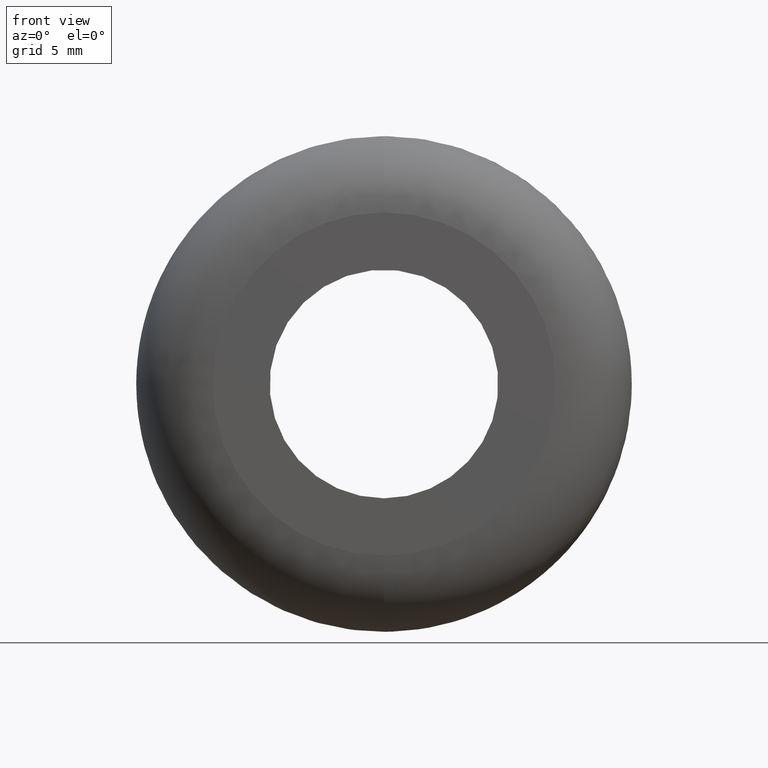
[diagram: clean part render]
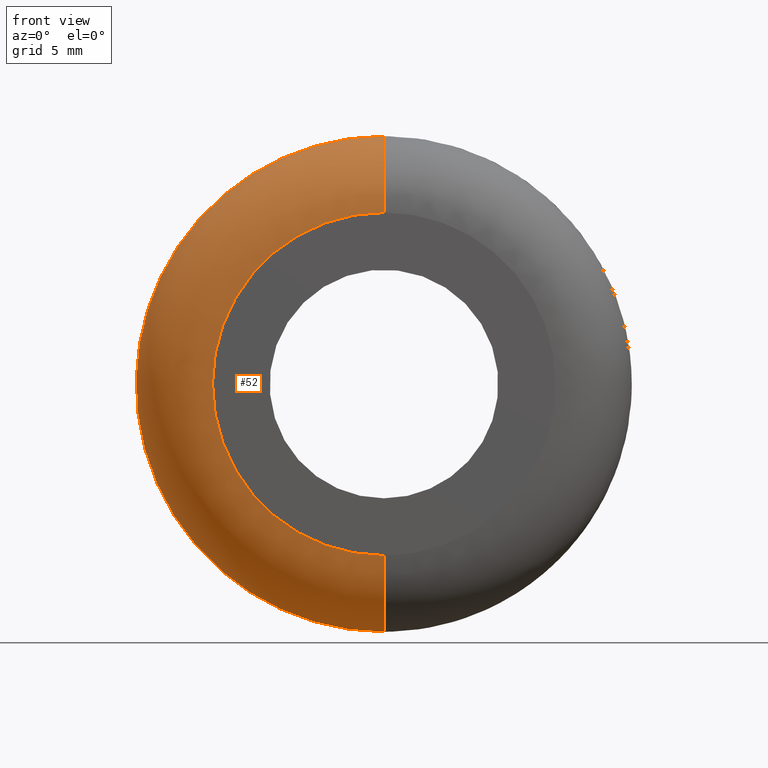
[diagram: same view with one face highlighted and labeled with its STEP entity id]
A machine part, front view. The second image highlights one B-rep face of the part: STEP entity #52.
In plain terms, the highlighted face is a freeform B-spline surface patch.
Its self-contained STEP definition (entity closure, byte-faithful):
#52=ADVANCED_FACE('',(#181),#180,.T.);
#180=( BOUNDED_SURFACE() B_SPLINE_SURFACE( 2,2,((#284,#285,#286,#287,#288),(#289,#290,#291,#292,#293),(#294,#295,#296,#297,#298),(#299,#300,#301,#302,#303),(#304,#305,#306,#307,#308)), .UNSPECIFIED.,.F.,.F.,.F.) B_SPLINE_SURFACE_WITH_KNOTS((3,2,3),(3,2,3),(-1.05693560015E-006,1.04719719888E+000,1.57079651646E+000),(0.00000000000E+000,1.57079632679E+000,3.14159265359E+000), .UNSPECIFIED. ) GEOMETRIC_REPRESENTATION_ITEM() RATIONAL_B_SPLINE_SURFACE(((1.00000000000E+000,7.07106781187E-001,1.00000000000E+000,7.07106781187E-001,1.00000000000E+000),(8.66025227628E-001,6.12372311135E-001,8.66025227628E-001,6.12372311135E-001,8.66025227628E-001),(1.00000000000E+000,7.07106781187E-001,1.00000000000E+000,7.07106781187E-001,1.00000000000E+000),(9.33012589549E-001,6.59739529003E-001,9.33012589549E-001,6.59739529003E-001,9.33012589549E-001),(9.33012613814E-001,6.59739546161E-001,9.33012613814E-001,6.59739546161E-001,9.33012613814E-001))) REPRESENTATION_ITEM('') SURFACE() );
#181=FACE_OUTER_BOUND('',#309,.T.);
#284=CARTESIAN_POINT('',(1.61239993919E-014,4.00000422774E+000,-1.30000000000E+001));
#285=CARTESIAN_POINT('',(-1.30000000000E+001,4.00000422774E+000,-1.30000000000E+001));
#286=CARTESIAN_POINT('',(-1.30000000000E+001,4.00000422774E+000,-1.14548653717E-014));
#287=CARTESIAN_POINT('',(-1.30000000000E+001,4.00000422774E+000,1.30000000000E+001));
#288=CARTESIAN_POINT('',(-1.85150641342E-014,4.00000422774E+000,1.30000000000E+001));
#289=CARTESIAN_POINT('',(1.57192578660E-014,1.69060127199E+000,-1.30000024409E+001));
#290=CARTESIAN_POINT('',(-1.30000024409E+001,1.69060127199E+000,-1.30000024409E+001));
#291=CARTESIAN_POINT('',(-1.30000024409E+001,1.69060127199E+000,-1.10939148781E-014));
#292=CARTESIAN_POINT('',(-1.30000024409E+001,1.69060127199E+000,1.30000024409E+001));
#293=CARTESIAN_POINT('',(-1.89198121640E-014,1.69060127199E+000,1.30000024409E+001));
#294=CARTESIAN_POINT('',(1.28523403794E-014,5.35899089486E-001,-1.10000012204E+001));
#295=CARTESIAN_POINT('',(-1.10000012204E+001,5.35899089486E-001,-1.10000012204E+001));
#296=CARTESIAN_POINT('',(-1.10000012204E+001,5.35899089486E-001,-8.24889292111E-015));
#297=CARTESIAN_POINT('',(-1.10000012204E+001,5.35899089486E-001,1.10000012204E+001));
#298=CARTESIAN_POINT('',(-1.64576397023E-014,5.35899089486E-001,1.10000012204E+001));
#299=CARTESIAN_POINT('',(1.15217989719E-014,-2.08055207485E-007,-1.00717971646E+001));
#300=CARTESIAN_POINT('',(-1.00717971646E+001,-2.08055205811E-007,-1.00717971646E+001));
#301=CARTESIAN_POINT('',(-1.00717971646E+001,-2.08055204213E-007,-6.92851326707E-015));
#302=CARTESIAN_POINT('',(-1.00717971646E+001,-2.08055202613E-007,1.00717971646E+001));
#303=CARTESIAN_POINT('',(-1.53149411670E-014,-2.08055204392E-007,1.00717971646E+001));
#304=CARTESIAN_POINT('',(1.00938729712E-014,7.57503318376E-014,-8.99999922353E+000));
#305=CARTESIAN_POINT('',(-8.99999922353E+000,7.73198818594E-014,-8.99999922353E+000));
#306=CARTESIAN_POINT('',(-8.99999922353E+000,7.86954172803E-014,-5.50058726239E-015));
#307=CARTESIAN_POINT('',(-8.99999922353E+000,8.01806760322E-014,8.99999922353E+000));
#308=CARTESIAN_POINT('',(-1.38870150934E-014,7.85466756132E-014,8.99999922353E+000));
#309=EDGE_LOOP('',(#459,#460,#461,#462,#463,#464));
#459=ORIENTED_EDGE('',*,*,#515,.T.);
#460=ORIENTED_EDGE('',*,*,#514,.T.);
#461=ORIENTED_EDGE('',*,*,#512,.T.);
#462=ORIENTED_EDGE('',*,*,#531,.T.);
#463=ORIENTED_EDGE('',*,*,#504,.F.);
#464=ORIENTED_EDGE('',*,*,#532,.F.);
#504=EDGE_CURVE('',#661,#662,#663,.T.);
#512=EDGE_CURVE('',#717,#710,#718,.T.);
#514=EDGE_CURVE('',#730,#717,#731,.T.);
#515=EDGE_CURVE('',#737,#730,#738,.T.);
#531=EDGE_CURVE('',#710,#662,#842,.T.);
#532=EDGE_CURVE('',#737,#661,#848,.T.);
#661=VERTEX_POINT('',#956);
#662=VERTEX_POINT('',#957);
#663=CIRCLE('',#961,9.00000000007E+000);
#710=VERTEX_POINT('',#989);
#717=VERTEX_POINT('',#994);
#718=CIRCLE('',#998,1.30000007224E+001);
#730=VERTEX_POINT('',#1001);
#731=CIRCLE('',#1005,1.30000007224E+001);
#737=VERTEX_POINT('',#1006);
#738=CIRCLE('',#1010,1.30000009005E+001);
#842=(BOUNDED_CURVE() B_SPLINE_CURVE(2,(#1067,#1068,#1069,#1070,#1071),.UNSPECIFIED.,.F.,.F.) B_SPLINE_CURVE_WITH_KNOTS((3,2,3),(4.31805356778E-008,1.04719719888E+000,1.57079632679E+000),.UNSPECIFIED.) CURVE() GEOMETRIC_REPRESENTATION_ITEM() RATIONAL_B_SPLINE_CURVE((1.00000000000E+000,8.66025227628E-001,1.00000000000E+000,9.33012613814E-001,9.33012613814E-001)) REPRESENTATION_ITEM('') );
#848=(BOUNDED_CURVE() B_SPLINE_CURVE(2,(#1072,#1073,#1074,#1075,#1076),.UNSPECIFIED.,.F.,.F.) B_SPLINE_CURVE_WITH_KNOTS((3,2,3),(-1.05693560015E-006,1.04719719888E+000,1.57079645324E+000),.UNSPECIFIED.) CURVE() GEOMETRIC_REPRESENTATION_ITEM() RATIONAL_B_SPLINE_CURVE((1.00000000000E+000,8.66025227628E-001,1.00000000000E+000,9.33012597638E-001,9.33012613814E-001)) REPRESENTATION_ITEM('') );
#956=CARTESIAN_POINT('',(1.10214596216E-015,1.44426103980E-015,9.00000000014E+000));
#957=CARTESIAN_POINT('',(1.03620815632E-014,-1.33226800000E-015,-9.00000000000E+000));
#958=CARTESIAN_POINT('',(-1.51558765538E-011,5.59965198979E-017,7.23625603882E-011));
#959=DIRECTION('',(-1.85113144292E-032,-1.00000000000E+000,1.54251613321E-016));
#960=DIRECTION('',(1.68398628376E-012,1.54251613321E-016,1.00000000000E+000));
#961=AXIS2_PLACEMENT_3D('',#958,#959,#960);
#989=CARTESIAN_POINT('',(0.00000000000E+000,4.00000000000E+000,-1.30000000000E+001));
#994=CARTESIAN_POINT('',(-8.50646145089E+000,4.00000186423E+000,-9.83057035906E+000));
#995=CARTESIAN_POINT('',(2.69144408094E-007,4.00000211387E+000,7.22359844829E-007));
#996=DIRECTION('',(-1.58569302951E-007,-1.00000000000E+000,1.62605521218E-007));
#997=DIRECTION('',(6.54339608713E-001,1.92042524366E-008,7.56200817554E-001));
#998=AXIS2_PLACEMENT_3D('',#995,#996,#997);
#1001=CARTESIAN_POINT('',(-1.29958946459E+001,4.00000422774E+000,3.26683870641E-001));
#1002=CARTESIAN_POINT('',(2.69144408094E-007,4.00000211387E+000,7.22359844829E-007));
#1003=DIRECTION('',(-1.58569302951E-007,-1.00000000000E+000,1.62605521218E-007));
#1004=DIRECTION('',(6.54339608713E-001,1.92042524366E-008,7.56200817554E-001));
#1005=AXIS2_PLACEMENT_3D('',#1002,#1003,#1004);
#1006=CARTESIAN_POINT('',(0.00000000000E+000,4.00000000000E+000,1.30000000000E+001));
#1007=CARTESIAN_POINT('',(3.50172220109E-007,4.00000211387E+000,-9.00461566644E-007));
#1008=DIRECTION('',(-1.66744279777E-007,-1.00000000000E+000,-1.62605507718E-007));
#1009=DIRECTION('',(2.69363227580E-008,1.62605503226E-007,-1.00000000000E+000));
#1010=AXIS2_PLACEMENT_3D('',#1007,#1008,#1009);
#1067=CARTESIAN_POINT('',(1.61239993919E-014,4.00000422774E+000,-1.30000000000E+001));
#1068=CARTESIAN_POINT('',(1.57192578660E-014,1.69060127199E+000,-1.30000024409E+001));
#1069=CARTESIAN_POINT('',(1.28523403794E-014,5.35899089486E-001,-1.10000012204E+001));
#1070=CARTESIAN_POINT('',(1.15217994885E-014,2.37986712760E-016,-1.00717975249E+001));
#1071=CARTESIAN_POINT('',(1.00938740056E-014,3.86728408235E-016,-9.00000000000E+000));
#1072=CARTESIAN_POINT('',(-1.85150641342E-014,4.00000422774E+000,1.30000000000E+001));
#1073=CARTESIAN_POINT('',(-1.89198121640E-014,1.69060127199E+000,1.30000024409E+001));
#1074=CARTESIAN_POINT('',(-1.64576397023E-014,5.35899089486E-001,1.10000012204E+001));
#1075=CARTESIAN_POINT('',(-1.53149413149E-014,-1.38703538995E-007,1.00717972847E+001));
#1076=CARTESIAN_POINT('',(-1.38870154382E-014,3.66780417082E-014,8.99999948235E+000));